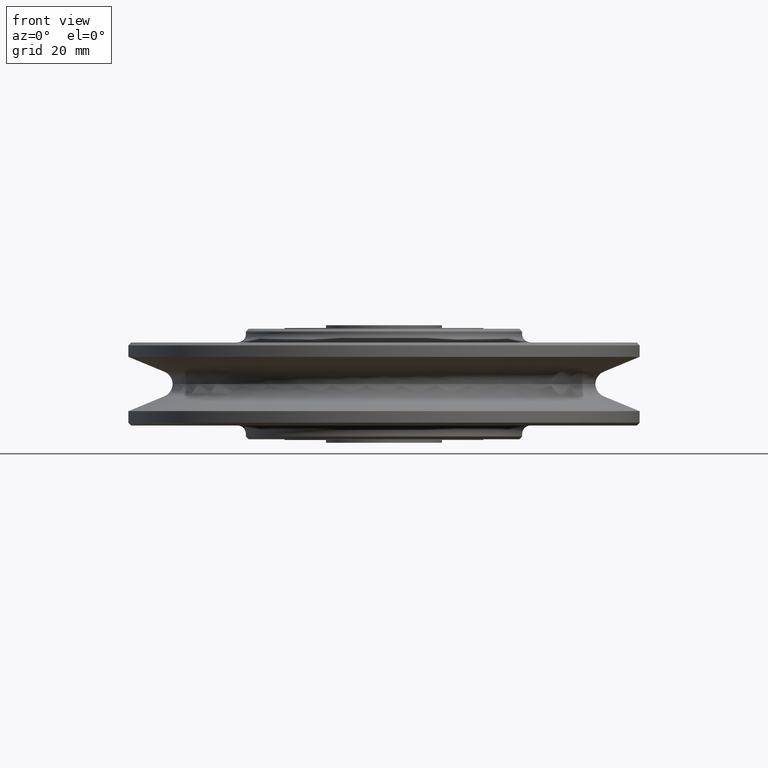
[diagram: clean part render]
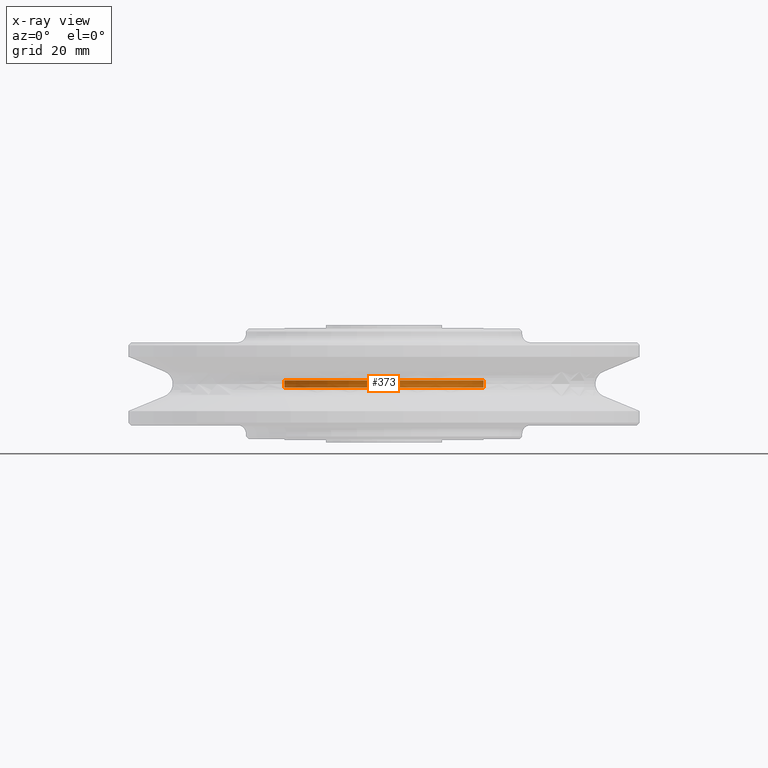
[diagram: x-ray — body ghosted, one internal face saturated and labeled with its STEP entity id]
A machine part, front view, then the same camera in x-ray: the body is ghosted and one INTERNAL B-rep face — a face not visible from any outside direction — is saturated and labeled: STEP entity #373.
In plain terms, the highlighted cylindrical surface (partial cylindrical patch) has radius 36 mm, axis along (0, 0, 1).
Its self-contained STEP definition (entity closure, byte-faithful):
#373=ADVANCED_FACE('',(#779),#780,.F.);
#779=FACE_OUTER_BOUND('',#1197,.T.);
#780=CYLINDRICAL_SURFACE('',#1198,36.0);
#1197=EDGE_LOOP('',(#2417,#2418,#2419,#2420));
#1198=AXIS2_PLACEMENT_3D('',#2421,#2422,#2423);
#2417=ORIENTED_EDGE('',*,*,#2705,.T.);
#2418=ORIENTED_EDGE('',*,*,#2995,.T.);
#2419=ORIENTED_EDGE('',*,*,#2707,.T.);
#2420=ORIENTED_EDGE('',*,*,#3053,.T.);
#2421=CARTESIAN_POINT('',(0.0,0.0,0.0));
#2422=DIRECTION('',(0.0,0.0,1.0));
#2423=DIRECTION('',(1.0,0.0,0.0));
#2705=EDGE_CURVE('',#3324,#3325,#3326,.T.);
#2707=EDGE_CURVE('',#3329,#3327,#3330,.T.);
#2995=EDGE_CURVE('',#3325,#3329,#3778,.T.);
#3053=EDGE_CURVE('',#3327,#3324,#3844,.T.);
#3324=VERTEX_POINT('',#5199);
#3325=VERTEX_POINT('',#5200);
#3326=LINE('',#5201,#5202);
#3327=VERTEX_POINT('',#5203);
#3329=VERTEX_POINT('',#5205);
#3330=LINE('',#5206,#5207);
#3778=CIRCLE('',#7905,36.0);
#3844=CIRCLE('',#8477,36.0);
#5199=CARTESIAN_POINT('',(36.0,0.0,1.25));
#5200=CARTESIAN_POINT('',(36.0,0.0,-1.25));
#5201=CARTESIAN_POINT('',(36.0,-4.40872847693047E-015,0.0));
#5202=VECTOR('',#8722,1.0);
#5203=CARTESIAN_POINT('',(-36.0,4.40872847693047E-015,1.25));
#5205=CARTESIAN_POINT('',(-36.0,4.40872847693047E-015,-1.25));
#5206=CARTESIAN_POINT('',(-36.0,4.40872847693047E-015,0.0));
#5207=VECTOR('',#8726,1.0);
#7905=AXIS2_PLACEMENT_3D('',#9065,#9066,#9067);
#8477=AXIS2_PLACEMENT_3D('',#9101,#9102,#9103);
#8722=DIRECTION('',(-0.0,0.0,-1.0));
#8726=DIRECTION('',(-0.0,0.0,1.0));
#9065=CARTESIAN_POINT('',(0.0,0.0,-1.25));
#9066=DIRECTION('',(0.0,0.0,-1.0));
#9067=DIRECTION('',(1.0,0.0,0.0));
#9101=CARTESIAN_POINT('',(0.0,0.0,1.25));
#9102=DIRECTION('',(0.0,-0.0,1.0));
#9103=DIRECTION('',(1.0,0.0,0.0));